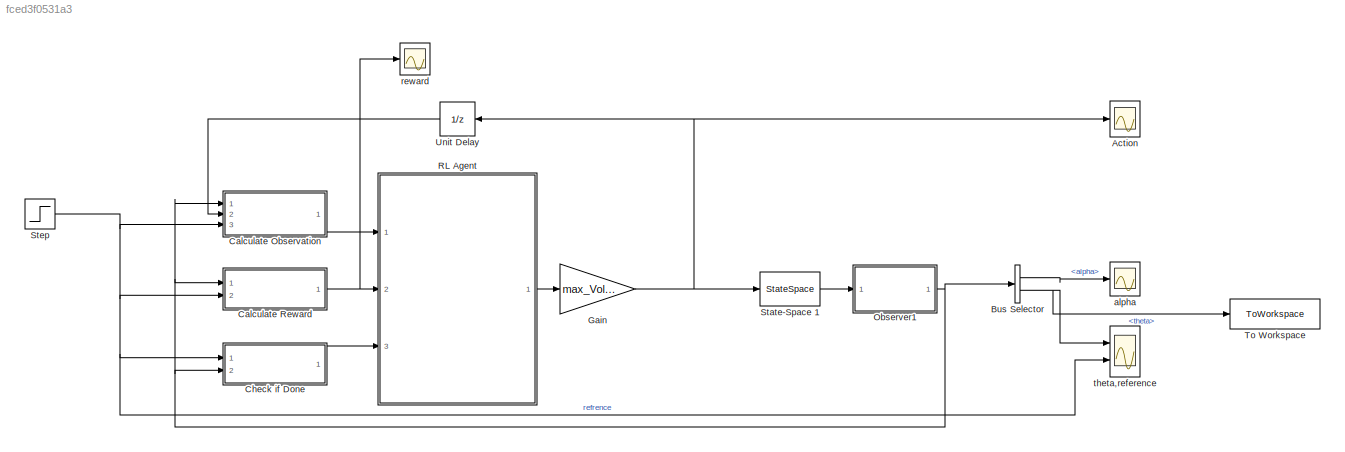
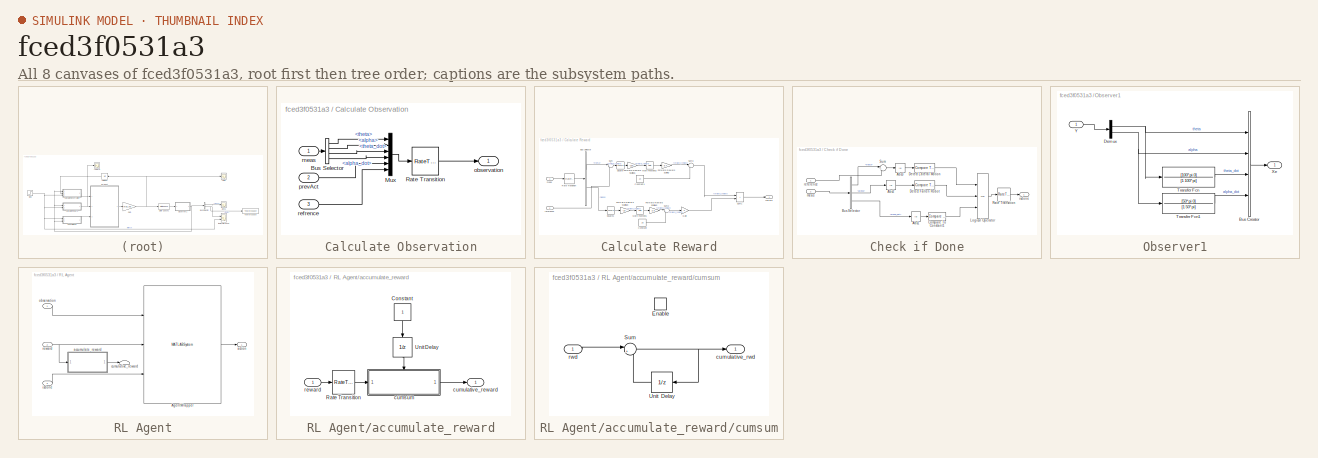
[diagram: thumbnail index - all 8 canvases of the model, root first then tree order]
MODEL slx_fced3f0531a3
KIND model
CONFIG AbsTol = auto
CONFIG EnableMultiTasking = off
CONFIG FixedStep = auto
CONFIG MaxStep = auto
CONFIG MinStep = auto
CONFIG RelTol = 1e-3
CONFIG SampleTimeConstraint = Unconstrained
CONFIG Solver = VariableStepAuto
CONFIG SolverName = VariableStepAuto
CONFIG StartTime = 0.0
CONFIG StopTime = 10
BLOCK [Scope] Action
  Floating = off
  NumInputPorts = 1
  Ports = [1]
  ScopeSpecificationString = Simulink.scopes.TimeScopeBlockCfg('CurrentConfiguration', extmgr.ConfigurationSet(extmgr.Configuration('Core','General UI',true),extmgr.Configuration('Core','Source UI',true),extmgr.Configuration('Sources','WiredSimulink',true,'DataLoggingVariableName','ScopeData1'),extmgr.Configuration('Visuals','Time Domain',true,'SerializedDisplays',{struct('MinYLimReal','-11.20278','MaxYLimReal','1.73112','YLa...<+1456ch>
BLOCK [BusSelector] Bus Selector
  OutputSignals = alpha,theta
  Ports = [1, 2]
BLOCK [SubSystem] Calculate Observation
  Ports = [3, 1]
  RequestExecContextInheritance = off
BLOCK [BusSelector] Calculate Observation/Bus Selector
  OutputSignals = theta,alpha,theta_dot,alpha_dot
  Ports = [1, 4]
BLOCK [Mux] Calculate Observation/Mux
  DisplayOption = bar
  Inputs = 6
  Ports = [6, 1]
BLOCK [RateTransition] Calculate Observation/Rate Transition
BLOCK [Inport] Calculate Observation/meas
BLOCK [Outport] Calculate Observation/observation
  VectorParamsAs1DForOutWhenUnconnected = off
BLOCK [Inport] Calculate Observation/prevAct
  Port = 2
BLOCK [Inport] Calculate Observation/refrence
  Port = 3
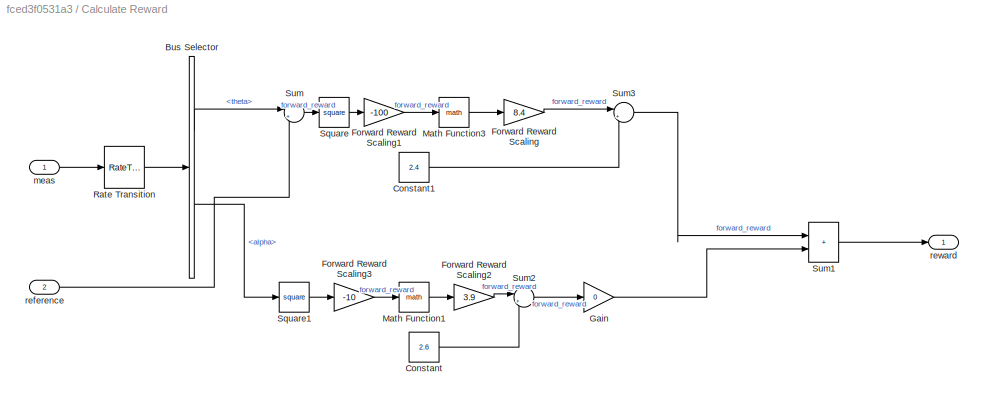
BLOCK [SubSystem] Calculate Reward
  Ports = [2, 1]
  RequestExecContextInheritance = off
BLOCK [BusSelector] Calculate Reward/Bus Selector
  OutputSignals = theta,alpha
  Ports = [1, 2]
BLOCK [Constant] Calculate Reward/Constant
  Value = 2.6
BLOCK [Constant] Calculate Reward/Constant1
  Value = 2.4
BLOCK [Gain] Calculate Reward/Forward Reward Scaling
  Gain = 8.4
BLOCK [Gain] Calculate Reward/Forward Reward Scaling1
  Gain = -100
BLOCK [Gain] Calculate Reward/Forward Reward Scaling2
  Gain = 3.9
BLOCK [Gain] Calculate Reward/Forward Reward Scaling3
  Gain = -10
BLOCK [Gain] Calculate Reward/Gain
  Gain = 0
BLOCK [Math] Calculate Reward/Math Function1
  Ports = [1, 1]
BLOCK [Math] Calculate Reward/Math Function3
  Ports = [1, 1]
BLOCK [RateTransition] Calculate Reward/Rate Transition
  OutPortSampleTime = Ts
BLOCK [Math] Calculate Reward/Square
  Operator = square
  Ports = [1, 1]
BLOCK [Math] Calculate Reward/Square1
  Operator = square
  Ports = [1, 1]
BLOCK [Sum] Calculate Reward/Sum
  Inputs = |+-
  Ports = [2, 1]
BLOCK [Sum] Calculate Reward/Sum1
  IconShape = rectangular
  Inputs = |++
  Ports = [2, 1]
BLOCK [Sum] Calculate Reward/Sum2
  Inputs = |+-
  Ports = [2, 1]
BLOCK [Sum] Calculate Reward/Sum3
  Inputs = |+-
  Ports = [2, 1]
BLOCK [Inport] Calculate Reward/meas
BLOCK [Inport] Calculate Reward/reference
  Port = 2
BLOCK [Outport] Calculate Reward/reward
  VectorParamsAs1DForOutWhenUnconnected = off
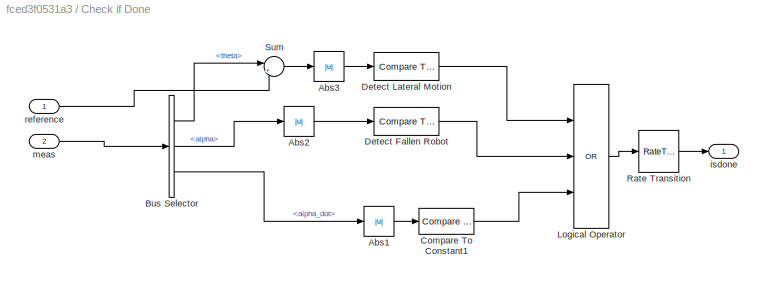
BLOCK [SubSystem] Check if Done
  Ports = [2, 1]
  RequestExecContextInheritance = off
BLOCK [Abs] Check if Done/Abs1
  SaturateOnIntegerOverflow = off
BLOCK [Abs] Check if Done/Abs2
  SaturateOnIntegerOverflow = off
BLOCK [Abs] Check if Done/Abs3
  SaturateOnIntegerOverflow = off
BLOCK [BusSelector] Check if Done/Bus Selector
  OutputSignals = theta,alpha,alpha_dot
  Ports = [1, 3]
BLOCK [Reference] Check if Done/Compare To Constant1  REF=simulink/Logic and Bit
Operations/Compare
To Constant
  Ports = [1, 1]
  SourceBlock = simulink/Logic and Bit\nOperations/Compare\nTo Constant
  SourceProductBaseCode = SL
  SourceType = Compare To Constant
BLOCK [Reference] Check if Done/Detect Fallen Robot  REF=simulink/Logic and Bit
Operations/Compare
To Constant
  Ports = [1, 1]
  SourceBlock = simulink/Logic and Bit\nOperations/Compare\nTo Constant
  SourceProductBaseCode = SL
  SourceType = Compare To Constant
BLOCK [Reference] Check if Done/Detect Lateral Motion  REF=simulink/Logic and Bit
Operations/Compare
To Constant
  Ports = [1, 1]
  SourceBlock = simulink/Logic and Bit\nOperations/Compare\nTo Constant
  SourceProductBaseCode = SL
  SourceType = Compare To Constant
BLOCK [Logic] Check if Done/Logical Operator
  AllPortsSameDT = off
  Inputs = 3
  Operator = OR
  OutDataTypeStr = boolean
  Ports = [3, 1]
BLOCK [RateTransition] Check if Done/Rate Transition
BLOCK [Sum] Check if Done/Sum
  Inputs = |+-
  Ports = [2, 1]
BLOCK [Outport] Check if Done/isdone
  VectorParamsAs1DForOutWhenUnconnected = off
BLOCK [Inport] Check if Done/meas
  Port = 2
BLOCK [Inport] Check if Done/reference
BLOCK [Gain] Gain
  Gain = max_Voltage
BLOCK [SubSystem] Observer1
  Ports = [1, 1]
  RequestExecContextInheritance = off
BLOCK [BusCreator] Observer1/Bus Creator
  DisplayOption = bar
  InheritFromInputs = on
  Inputs = 4
  Ports = [4, 1]
BLOCK [Demux] Observer1/Demux
  Outputs = 2
  Ports = [1, 2]
BLOCK [TransferFcn] Observer1/Transfer Fcn
  Denominator = [1 100*pi]
  Numerator = [100*pi 0]
BLOCK [TransferFcn] Observer1/Transfer Fcn1
  Denominator = [1 50*pi]
  Numerator = [50*pi 0]
BLOCK [Outport] Observer1/Xe
BLOCK [Inport] Observer1/Y
BLOCK [SubSystem] RL Agent
  AncestorBlock = rllib/RL Agent
  Ports = [3, 1]
  RequestExecContextInheritance = off
BLOCK [MATLABSystem] RL Agent/AgentWrapper
  AgentObjectName = Agent
  BlockPath = SS_Model/RL Agent/AgentWrapper
  CollectLoggedSignals = true
  CollectModelStates = true
  IsIsDoneProvided = true
  IsRewardProvided = true
  MaskDisplay = disp('AgentWrapper');\nport_label('input',1,'observation');\nport_label('input',2,'reward');\nport_label('input',3,'isdone');\nport_label('output',1,'action');
  MaskType = rl.simulink.blocks.AgentWrapper
  ModelName = SS_Model
  Ports = [3, 1]
  System = rl.simulink.blocks.AgentWrapper
  TreatAsDirectFeedthrough = true
BLOCK [SubSystem] RL Agent/accumulate_reward
  Ports = [1, 1]
  RequestExecContextInheritance = off
BLOCK [Constant] RL Agent/accumulate_reward/Constant
  NameLocation = left
BLOCK [RateTransition] RL Agent/accumulate_reward/Rate Transition
  OutPortSampleTime = getSampleTime(Agent)
BLOCK [UnitDelay] RL Agent/accumulate_reward/Unit Delay
  HasFrameUpgradeWarning = on
  NameLocation = left
  SampleTime = -1
BLOCK [SubSystem] RL Agent/accumulate_reward/cumsum
  Ports = [1, 1, 1]
  RequestExecContextInheritance = off
BLOCK [EnablePort] RL Agent/accumulate_reward/cumsum/Enable
  Ports = []
BLOCK [Sum] RL Agent/accumulate_reward/cumsum/Sum
  Inputs = |++
  Ports = [2, 1]
BLOCK [UnitDelay] RL Agent/accumulate_reward/cumsum/Unit Delay
  HasFrameUpgradeWarning = on
  NameLocation = top
  SampleTime = -1
BLOCK [Outport] RL Agent/accumulate_reward/cumsum/cumulative_rwd
  VectorParamsAs1DForOutWhenUnconnected = off
BLOCK [Inport] RL Agent/accumulate_reward/cumsum/rwd
BLOCK [Outport] RL Agent/accumulate_reward/cumulative_reward
  VectorParamsAs1DForOutWhenUnconnected = off
BLOCK [Inport] RL Agent/accumulate_reward/reward
BLOCK [Outport] RL Agent/action
  VectorParamsAs1DForOutWhenUnconnected = off
BLOCK [Terminator] RL Agent/cumulative_reward
BLOCK [Inport] RL Agent/isdone
  Port = 3
BLOCK [Inport] RL Agent/observation
BLOCK [Inport] RL Agent/reward
  Port = 2
BLOCK [StateSpace] State-Space 1
  A = A
  B = B
  C = C
  D = D
  InitialCondition = 0
  Ports = [1, 1]
BLOCK [Step] Step
  SampleTime = 0
BLOCK [ToWorkspace] To Workspace
  FixptAsFi = on
  MaxDataPoints = inf
  Ports = [1]
  SampleTime = -1
  SaveFormat = Timeseries
  VariableName = simout
BLOCK [UnitDelay] Unit Delay
  HasFrameUpgradeWarning = on
  NameLocation = top
  SampleTime = -1
BLOCK [Scope] alpha
  Floating = off
  NumInputPorts = 1
  Ports = [1]
  ScopeSpecificationString = Simulink.scopes.TimeScopeBlockCfg('CurrentConfiguration', extmgr.ConfigurationSet(extmgr.Configuration('Core','General UI',true),extmgr.Configuration('Core','Source UI',true),extmgr.Configuration('Sources','WiredSimulink',true,'DataLoggingVariableName','ScopeData1'),extmgr.Configuration('Visuals','Time Domain',true,'SerializedDisplays',{struct('MinYLimReal','-0.11574','MaxYLimReal','0.56007','YLab...<+1476ch>
BLOCK [Scope] reward
  Floating = off
  NumInputPorts = 1
  Ports = [1]
  ScopeSpecificationString = Simulink.scopes.TimeScopeBlockCfg('CurrentConfiguration', extmgr.ConfigurationSet(extmgr.Configuration('Core','General UI',true),extmgr.Configuration('Core','Source UI',true),extmgr.Configuration('Sources','WiredSimulink',true,'DataLoggingVariableName','ScopeData1'),extmgr.Configuration('Visuals','Time Domain',true,'SerializedDisplays',{struct('MinYLimReal','-8.81353','MaxYLimReal','8.75706','YLab...<+1471ch>
BLOCK [Scope] theta,reference
  Floating = off
  NumInputPorts = 2
  Ports = [2]
  ScopeSpecificationString = Simulink.scopes.TimeScopeBlockCfg('CurrentConfiguration', extmgr.ConfigurationSet(extmgr.Configuration('Core','General UI',true),extmgr.Configuration('Core','Source UI',true),extmgr.Configuration('Sources','WiredSimulink',true,'DataLoggingVariableName','ScopeData1'),extmgr.Configuration('Visuals','Time Domain',true,'SerializedDisplays',{struct('MinYLimReal','-0.82856','MaxYLimReal','1.20317','YLab...<+1473ch>
LINE Bus Selector:1 -> alpha:1
NET Bus Selector:2 -> To Workspace:1, theta,reference:1
LINE Calculate Observation/Bus Selector:1 -> Calculate Observation/Mux:1
LINE Calculate Observation/Bus Selector:2 -> Calculate Observation/Mux:2
LINE Calculate Observation/Bus Selector:3 -> Calculate Observation/Mux:3
LINE Calculate Observation/Bus Selector:4 -> Calculate Observation/Mux:4
LINE Calculate Observation/Mux:1 -> Calculate Observation/Rate Transition:1
LINE Calculate Observation/Rate Transition:1 -> Calculate Observation/observation:1
LINE Calculate Observation/meas:1 -> Calculate Observation/Bus Selector:1
LINE Calculate Observation/prevAct:1 -> Calculate Observation/Mux:5
LINE Calculate Observation/refrence:1 -> Calculate Observation/Mux:6
LINE Calculate Observation:1 -> RL Agent:1
LINE Calculate Reward/Bus Selector:1 -> Calculate Reward/Sum:1
LINE Calculate Reward/Bus Selector:2 -> Calculate Reward/Square1:1
LINE Calculate Reward/Constant1:1 -> Calculate Reward/Sum3:2
LINE Calculate Reward/Constant:1 -> Calculate Reward/Sum2:2
LINE Calculate Reward/Forward Reward Scaling1:1 -> Calculate Reward/Math Function3:1
LINE Calculate Reward/Forward Reward Scaling2:1 -> Calculate Reward/Sum2:1
LINE Calculate Reward/Forward Reward Scaling3:1 -> Calculate Reward/Math Function1:1
LINE Calculate Reward/Forward Reward Scaling:1 -> Calculate Reward/Sum3:1
LINE Calculate Reward/Gain:1 -> Calculate Reward/Sum1:2
LINE Calculate Reward/Math Function1:1 -> Calculate Reward/Forward Reward Scaling2:1
LINE Calculate Reward/Math Function3:1 -> Calculate Reward/Forward Reward Scaling:1
LINE Calculate Reward/Rate Transition:1 -> Calculate Reward/Bus Selector:1
LINE Calculate Reward/Square1:1 -> Calculate Reward/Forward Reward Scaling3:1
LINE Calculate Reward/Square:1 -> Calculate Reward/Forward Reward Scaling1:1
LINE Calculate Reward/Sum1:1 -> Calculate Reward/reward:1
LINE Calculate Reward/Sum2:1 -> Calculate Reward/Gain:1
LINE Calculate Reward/Sum3:1 -> Calculate Reward/Sum1:1
LINE Calculate Reward/Sum:1 -> Calculate Reward/Square:1
LINE Calculate Reward/meas:1 -> Calculate Reward/Rate Transition:1
LINE Calculate Reward/reference:1 -> Calculate Reward/Sum:2
NET Calculate Reward:1 -> RL Agent:2, reward:1
LINE Check if Done/Abs1:1 -> Check if Done/Compare To Constant1:1
LINE Check if Done/Abs2:1 -> Check if Done/Detect Fallen Robot:1
LINE Check if Done/Abs3:1 -> Check if Done/Detect Lateral Motion:1
LINE Check if Done/Bus Selector:1 -> Check if Done/Sum:1
LINE Check if Done/Bus Selector:2 -> Check if Done/Abs2:1
LINE Check if Done/Bus Selector:3 -> Check if Done/Abs1:1
LINE Check if Done/Compare To Constant1:1 -> Check if Done/Logical Operator:3
LINE Check if Done/Detect Fallen Robot:1 -> Check if Done/Logical Operator:2
LINE Check if Done/Detect Lateral Motion:1 -> Check if Done/Logical Operator:1
LINE Check if Done/Logical Operator:1 -> Check if Done/Rate Transition:1
LINE Check if Done/Rate Transition:1 -> Check if Done/isdone:1
LINE Check if Done/Sum:1 -> Check if Done/Abs3:1
LINE Check if Done/meas:1 -> Check if Done/Bus Selector:1
LINE Check if Done/reference:1 -> Check if Done/Sum:2
LINE Check if Done:1 -> RL Agent:3
NET Gain:1 -> Action:1, State-Space 1:1, Unit Delay:1
LINE Observer1/Bus Creator:1 -> Observer1/Xe:1
NET Observer1/Demux:1 -> Observer1/Bus Creator:1, Observer1/Transfer Fcn:1
NET Observer1/Demux:2 -> Observer1/Bus Creator:2, Observer1/Transfer Fcn1:1
LINE Observer1/Transfer Fcn1:1 -> Observer1/Bus Creator:4
LINE Observer1/Transfer Fcn:1 -> Observer1/Bus Creator:3
LINE Observer1/Y:1 -> Observer1/Demux:1
NET Observer1:1 -> Bus Selector:1, Calculate Observation:1, Calculate Reward:1, Check if Done:2
LINE RL Agent:1 -> Gain:1
LINE State-Space 1:1 -> Observer1:1
NET Step:1 -> Calculate Observation:3, Calculate Reward:2, Check if Done:1, theta,reference:2
LINE Unit Delay:1 -> Calculate Observation:2
note: NET lines group one-source signal fan-out (src -> all destinations, sorted); 1:1 wires keep LINE
